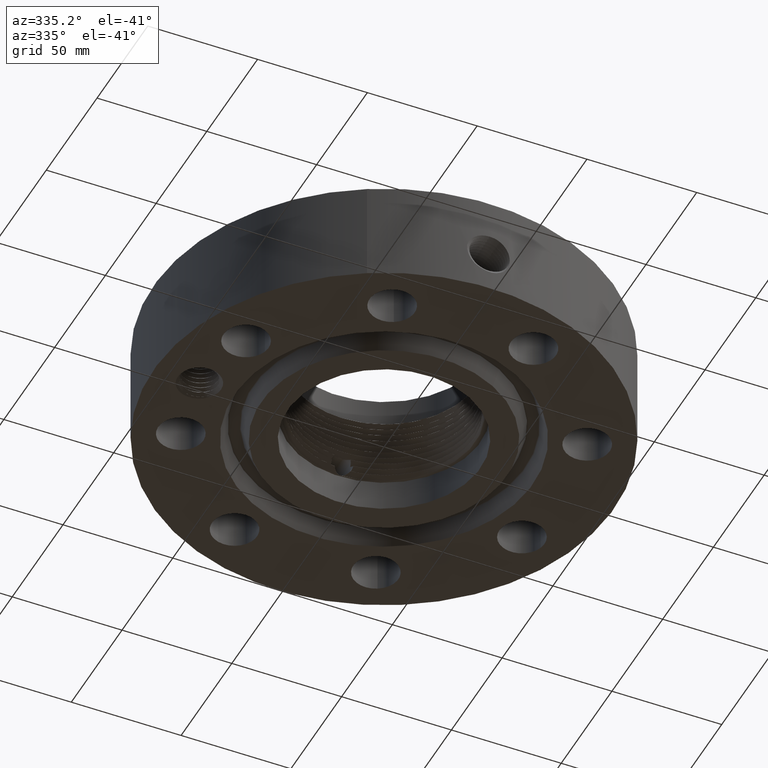
[diagram: clean part render]
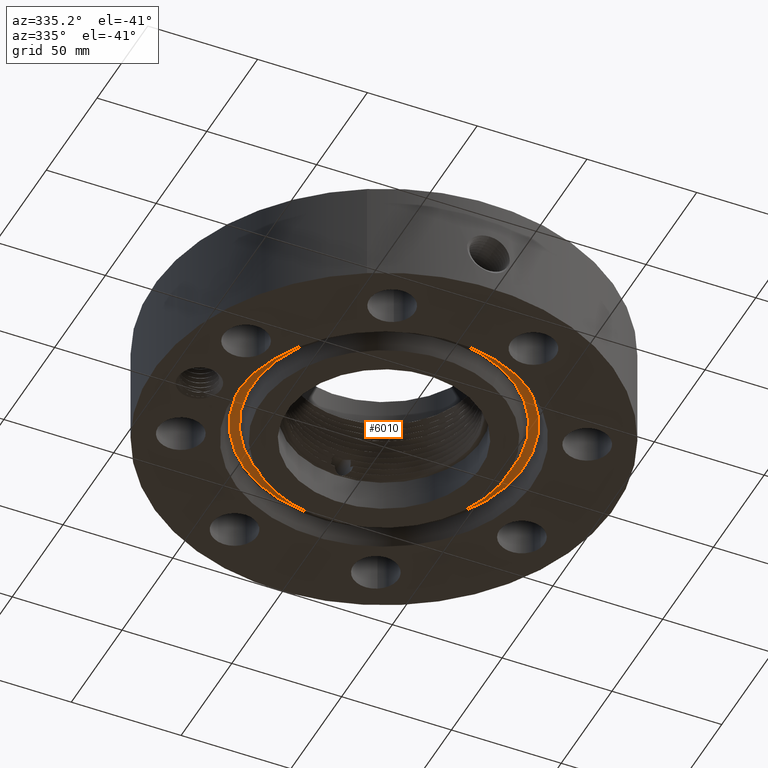
[diagram: same view with one face highlighted and labeled with its STEP entity id]
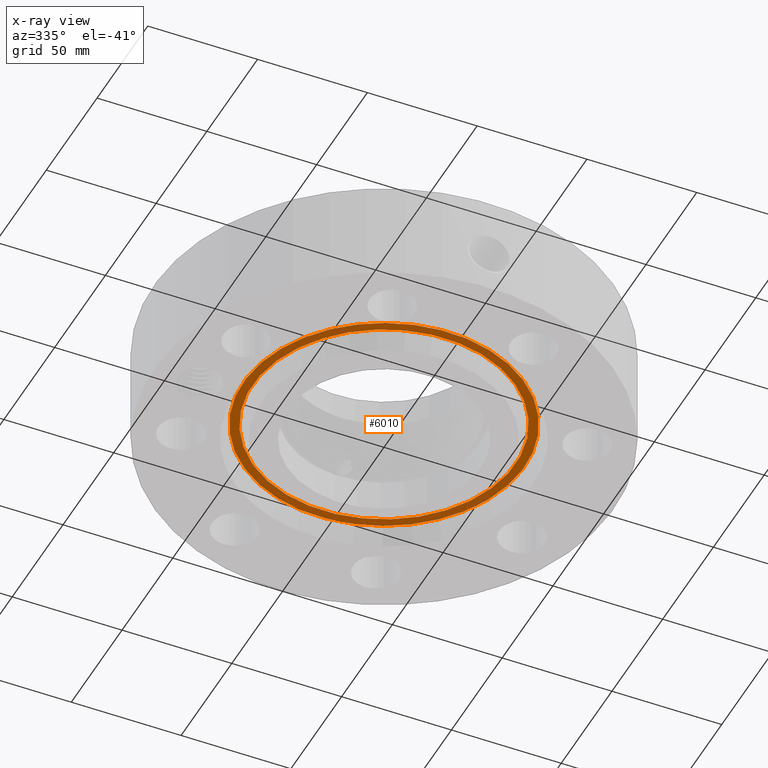
[diagram: x-ray of the same camera — body ghosted, the highlighted face saturated]
A machine part, auxiliary view. The second image highlights one B-rep face of the part: STEP entity #6010.
The next image is the same camera in x-ray: the body ghosted, the highlighted face saturated — about 0% of this face is hidden behind the body in this view.
In plain terms, the highlighted planar face has unit normal (0, 0, 1).
Its self-contained STEP definition (entity closure, byte-faithful):
#5142=AXIS2_PLACEMENT_3D('Circle Axis2P3D',#5140,#5141,$) ;
#5168=AXIS2_PLACEMENT_3D('Circle Axis2P3D',#5166,#5167,$) ;
#5986=AXIS2_PLACEMENT_3D('Plane Axis2P3D',#5983,#5984,#5985) ;
#5990=AXIS2_PLACEMENT_3D('Circle Axis2P3D',#5988,#5989,$) ;
#5999=AXIS2_PLACEMENT_3D('Circle Axis2P3D',#5997,#5998,$) ;
#5140=CARTESIAN_POINT('Axis2P3D Location',(0.,0.,0.313000000001)) ;
#5144=CARTESIAN_POINT('Vertex',(1.12970830473,-2.06791718093,0.313000000001)) ;
#5146=CARTESIAN_POINT('Vertex',(-1.12970830473,2.06791718093,0.313000000001)) ;
#5166=CARTESIAN_POINT('Axis2P3D Location',(0.,0.,0.313000000001)) ;
#5983=CARTESIAN_POINT('Axis2P3D Location',(0.,2.35637906988,0.313000000001)) ;
#5988=CARTESIAN_POINT('Axis2P3D Location',(0.,0.,0.313000000001)) ;
#5992=CARTESIAN_POINT('Vertex',(-1.20749119597,2.2102978083,0.313000000001)) ;
#5994=CARTESIAN_POINT('Vertex',(1.20749119597,-2.2102978083,0.313000000001)) ;
#5997=CARTESIAN_POINT('Axis2P3D Location',(0.,0.,0.313000000001)) ;
#5141=DIRECTION('Axis2P3D Direction',(0.,0.,0.0393700787402)) ;
#5167=DIRECTION('Axis2P3D Direction',(0.,0.,0.0393700787402)) ;
#5984=DIRECTION('Axis2P3D Direction',(0.,0.,0.0393700787402)) ;
#5985=DIRECTION('Axis2P3D XDirection',(0.0393700787402,0.,0.)) ;
#5989=DIRECTION('Axis2P3D Direction',(0.,0.,0.0393700787402)) ;
#5998=DIRECTION('Axis2P3D Direction',(0.,0.,0.0393700787402)) ;
#6003=ORIENTED_EDGE('',*,*,#5996,.F.) ;
#6004=ORIENTED_EDGE('',*,*,#6001,.F.) ;
#6007=ORIENTED_EDGE('',*,*,#5148,.T.) ;
#6008=ORIENTED_EDGE('',*,*,#5170,.T.) ;
#6009=FACE_BOUND('',#6006,.T.) ;
#6010=ADVANCED_FACE('PartBody',(#6005,#6009),#5987,.F.) ;
#5143=CIRCLE('generated circle',#5142,2.35637906988) ;
#5169=CIRCLE('generated circle',#5168,2.35637906988) ;
#5991=CIRCLE('generated circle',#5990,2.51862093014) ;
#6000=CIRCLE('generated circle',#5999,2.51862093014) ;
#5148=EDGE_CURVE('',#5145,#5147,#5143,.T.) ;
#5170=EDGE_CURVE('',#5147,#5145,#5169,.T.) ;
#5996=EDGE_CURVE('',#5993,#5995,#5991,.T.) ;
#6001=EDGE_CURVE('',#5995,#5993,#6000,.T.) ;
#6002=EDGE_LOOP('',(#6003,#6004)) ;
#6006=EDGE_LOOP('',(#6007,#6008)) ;
#6005=FACE_OUTER_BOUND('',#6002,.T.) ;
#5987=PLANE('',#5986) ;
#5145=VERTEX_POINT('',#5144) ;
#5147=VERTEX_POINT('',#5146) ;
#5993=VERTEX_POINT('',#5992) ;
#5995=VERTEX_POINT('',#5994) ;